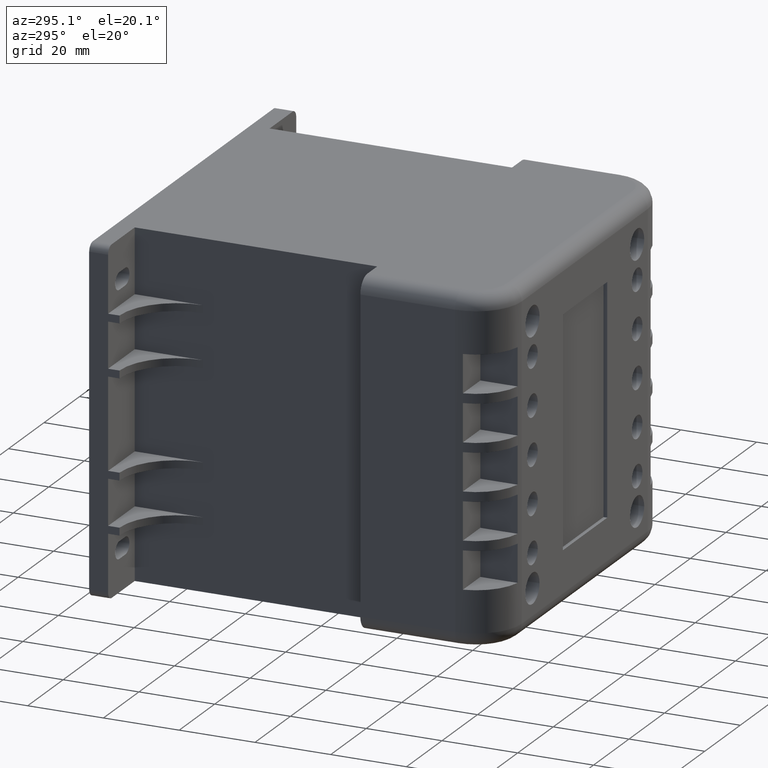
[diagram: clean part render]
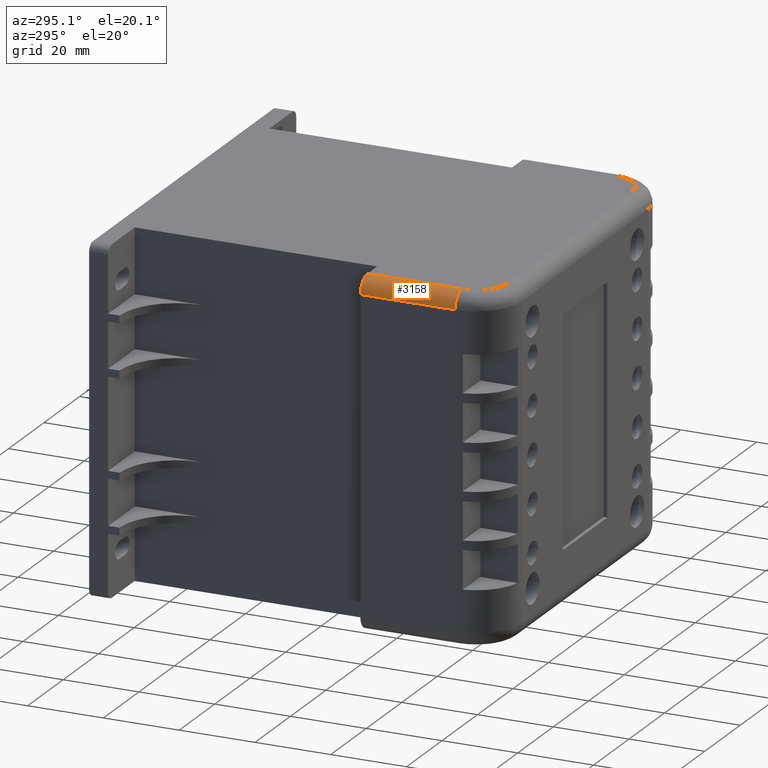
[diagram: same view with one face highlighted and labeled with its STEP entity id]
A machine part, auxiliary view. The second image highlights one B-rep face of the part: STEP entity #3158.
In plain terms, the highlighted cylindrical surface (edge-blend (fillet) strip) has radius 4 mm, axis along (-0, -1, -0).
Its self-contained STEP definition (entity closure, byte-faithful):
#46=CYLINDRICAL_SURFACE('',#3505,4.);
#72=CIRCLE('',#3416,4.);
#114=CIRCLE('',#3502,4.00000000000004);
#289=FACE_OUTER_BOUND('',#479,.T.);
#479=EDGE_LOOP('',(#2146,#2147,#2148,#2149));
#715=LINE('',#4856,#1019);
#720=LINE('',#4881,#1024);
#1019=VECTOR('',#3967,10.);
#1024=VECTOR('',#3998,10.);
#1280=VERTEX_POINT('',#4697);
#1281=VERTEX_POINT('',#4699);
#1326=VERTEX_POINT('',#4854);
#1333=VERTEX_POINT('',#4876);
#1564=EDGE_CURVE('',#1281,#1280,#72,.T.);
#1635=EDGE_CURVE('',#1280,#1326,#715,.T.);
#1645=EDGE_CURVE('',#1333,#1326,#114,.T.);
#1648=EDGE_CURVE('',#1333,#1281,#720,.T.);
#2146=ORIENTED_EDGE('',*,*,#1564,.T.);
#2147=ORIENTED_EDGE('',*,*,#1635,.T.);
#2148=ORIENTED_EDGE('',*,*,#1645,.F.);
#2149=ORIENTED_EDGE('',*,*,#1648,.T.);
#3158=ADVANCED_FACE('',(#289),#46,.T.);
#3416=AXIS2_PLACEMENT_3D('',#4700,#3779,#3780);
#3502=AXIS2_PLACEMENT_3D('',#4877,#3990,#3991);
#3505=AXIS2_PLACEMENT_3D('',#4880,#3996,#3997);
#3779=DIRECTION('center_axis',(0.,1.,0.));
#3780=DIRECTION('ref_axis',(0.707106781186549,0.,0.707106781186546));
#3967=DIRECTION('',(0.,1.,0.));
#3990=DIRECTION('center_axis',(0.,1.,0.));
#3991=DIRECTION('ref_axis',(0.,0.,1.));
#3996=DIRECTION('center_axis',(0.,1.,0.));
#3997=DIRECTION('ref_axis',(0.707106781186549,0.,0.707106781186546));
#3998=DIRECTION('',(0.,-1.,0.));
#4697=CARTESIAN_POINT('',(3.39481529307603E-14,0.,86.));
#4699=CARTESIAN_POINT('',(-3.99999999999997,0.,90.));
#4700=CARTESIAN_POINT('Origin',(-3.99999999999997,0.,86.));
#4854=CARTESIAN_POINT('',(3.39481529307603E-14,25.,86.));
#4856=CARTESIAN_POINT('',(3.38618022510673E-14,0.,86.));
#4876=CARTESIAN_POINT('',(-3.99999999999997,25.,90.));
#4877=CARTESIAN_POINT('Origin',(-3.99999999999997,25.,86.));
#4880=CARTESIAN_POINT('Origin',(-3.99999999999997,0.,86.));
#4881=CARTESIAN_POINT('',(-3.99999999999997,0.,90.));